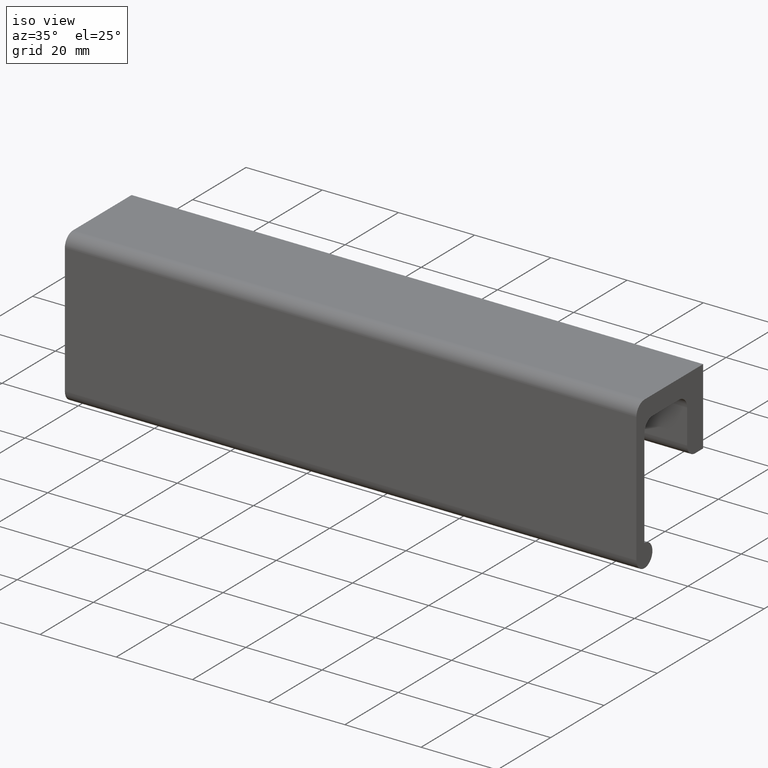
[diagram: clean part render]
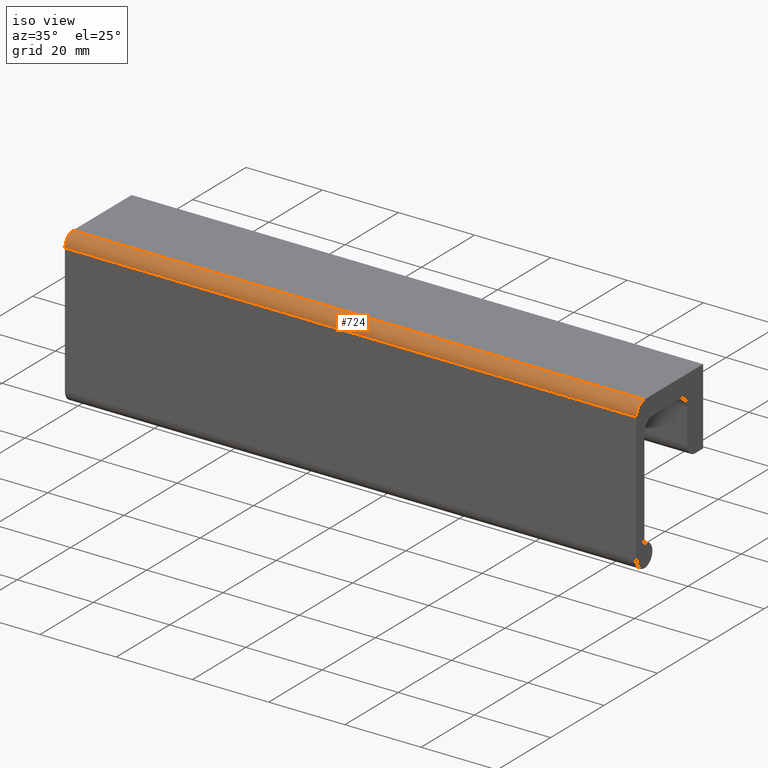
[diagram: same view with one face highlighted and labeled with its STEP entity id]
A machine part, iso view. The second image highlights one B-rep face of the part: STEP entity #724.
In plain terms, the highlighted face is a freeform B-spline surface patch.
Its self-contained STEP definition (entity closure, byte-faithful):
#514=CARTESIAN_POINT('',(0.0,-25.0,-3.0));
#515=VERTEX_POINT('',#514);
#521=CARTESIAN_POINT('',(0.0,-22.0,0.0));
#522=VERTEX_POINT('',#521);
#523=CARTESIAN_POINT('',(0.0,-22.0,0.0));
#524=CARTESIAN_POINT('',(0.0,-25.0,0.0));
#525=CARTESIAN_POINT('',(0.0,-25.0,-3.0));
#533=(BOUNDED_CURVE()B_SPLINE_CURVE(2,(#523,#524,#525),.UNSPECIFIED.,.F.,.U.)CURVE()GEOMETRIC_REPRESENTATION_ITEM()QUASI_UNIFORM_CURVE()RATIONAL_B_SPLINE_CURVE((1.0,0.707106781186548,1.0))REPRESENTATION_ITEM(''));
#534=EDGE_CURVE('',#522,#515,#533,.T.);
#558=CARTESIAN_POINT('',(150.0,-22.0,0.0));
#559=VERTEX_POINT('',#558);
#565=CARTESIAN_POINT('',(150.0,-25.0,-3.0));
#566=VERTEX_POINT('',#565);
#567=CARTESIAN_POINT('',(150.0,-22.0,0.0));
#568=CARTESIAN_POINT('',(149.999999999999940,-25.0,0.0));
#569=CARTESIAN_POINT('',(150.0,-25.0,-3.0));
#577=(BOUNDED_CURVE()B_SPLINE_CURVE(2,(#567,#568,#569),.UNSPECIFIED.,.F.,.U.)CURVE()GEOMETRIC_REPRESENTATION_ITEM()QUASI_UNIFORM_CURVE()RATIONAL_B_SPLINE_CURVE((1.0,0.707106781186548,1.0))REPRESENTATION_ITEM(''));
#578=EDGE_CURVE('',#559,#566,#577,.T.);
#686=CARTESIAN_POINT('',(150.0,-22.0,0.0));
#687=CARTESIAN_POINT('',(0.0,-22.0,0.0));
#688=QUASI_UNIFORM_CURVE('',1,(#686,#687),.UNSPECIFIED.,.F.,.U.);
#689=EDGE_CURVE('',#559,#522,#688,.T.);
#700=CARTESIAN_POINT('',(153.750000000000000,-21.921469155076380,-0.001028025073329));
#701=CARTESIAN_POINT('',(-3.843750000000000,-21.921469155076380,-0.001028025073329));
#702=CARTESIAN_POINT('',(153.749999999999970,-25.224954401664167,0.085476780498783));
#703=CARTESIAN_POINT('',(-3.843750000000000,-25.224954401664167,0.085476780498783));
#704=CARTESIAN_POINT('',(153.750000000000060,-24.992573438142436,-3.210960226877957));
#705=CARTESIAN_POINT('',(-3.843750000000000,-24.992573438142436,-3.210960226877957));
#713=(BOUNDED_SURFACE()B_SPLINE_SURFACE(1,2,((#700,#702,#704),(#701,#703,#705)),.UNSPECIFIED.,.F.,.F.,.U.)B_SPLINE_SURFACE_WITH_KNOTS((2,2),(3,3),(0.0,157.593750000000110),(0.0,5.313427032265103),.UNSPECIFIED.)GEOMETRIC_REPRESENTATION_ITEM()RATIONAL_B_SPLINE_SURFACE(((1.0,0.670944223154768,0.996392648609106),(1.0,0.670944223154768,0.996392648609106)))REPRESENTATION_ITEM('')SURFACE());
#714=ORIENTED_EDGE('',*,*,#534,.T.);
#715=CARTESIAN_POINT('',(150.0,-25.0,-3.0));
#716=CARTESIAN_POINT('',(0.0,-25.0,-3.0));
#717=QUASI_UNIFORM_CURVE('',1,(#715,#716),.UNSPECIFIED.,.F.,.U.);
#718=EDGE_CURVE('',#566,#515,#717,.T.);
#719=ORIENTED_EDGE('',*,*,#718,.F.);
#720=ORIENTED_EDGE('',*,*,#578,.F.);
#721=ORIENTED_EDGE('',*,*,#689,.T.);
#722=EDGE_LOOP('',(#714,#719,#720,#721));
#723=FACE_OUTER_BOUND('',#722,.T.);
#724=ADVANCED_FACE('',(#723),#713,.T.);